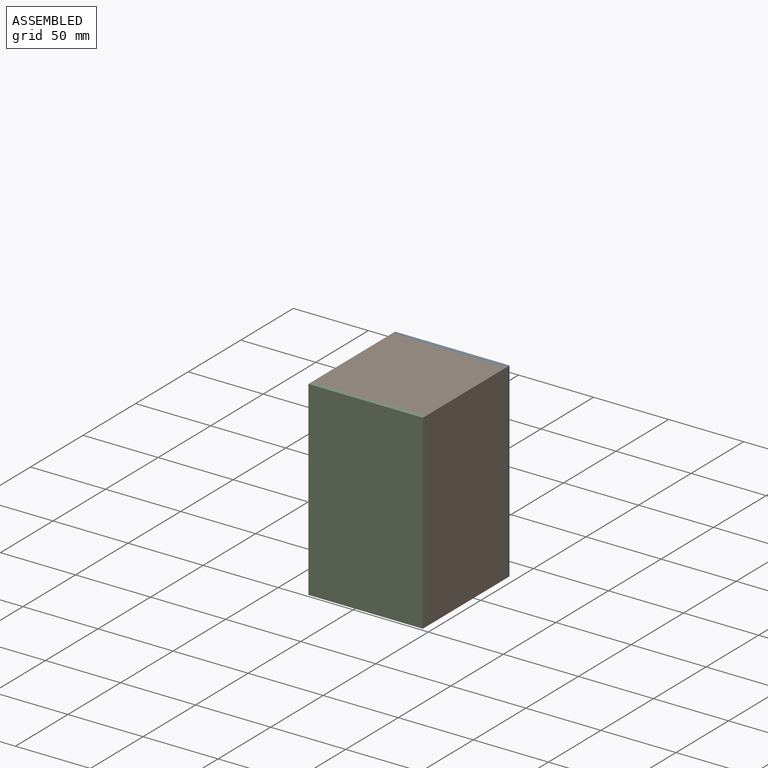
[diagram: assembled view]
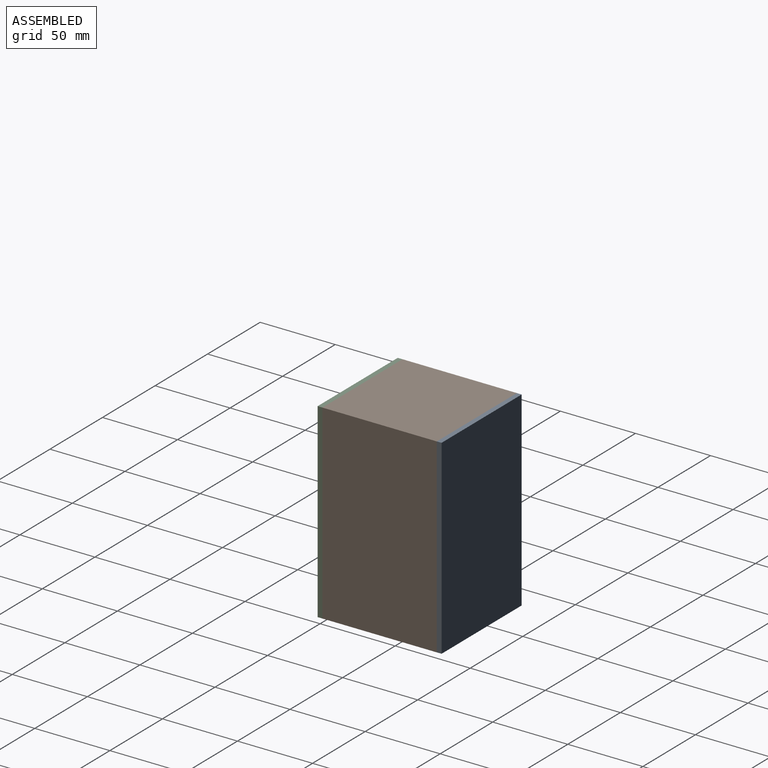
[diagram: assembled view, second angle]
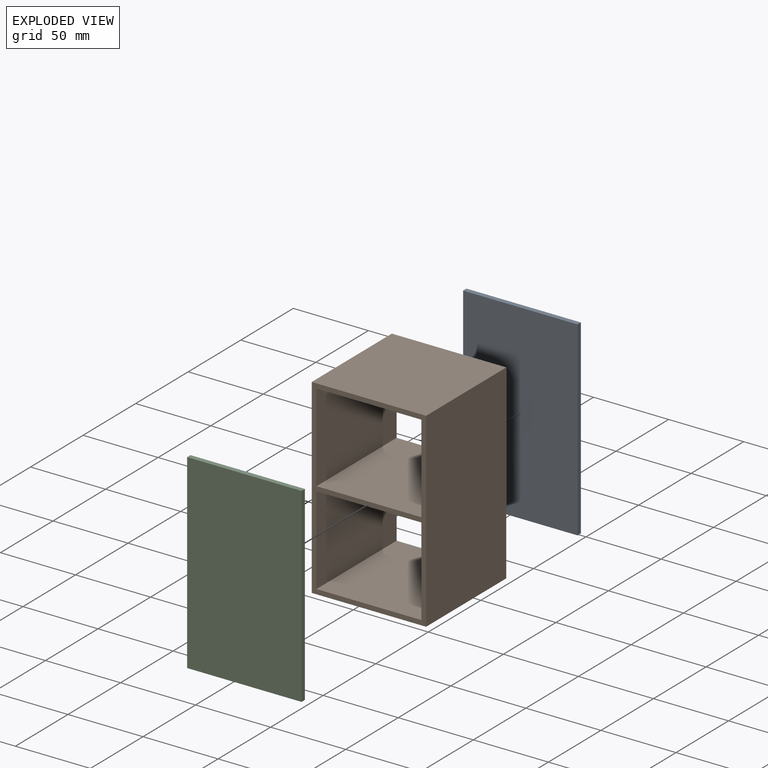
[diagram: exploded view]
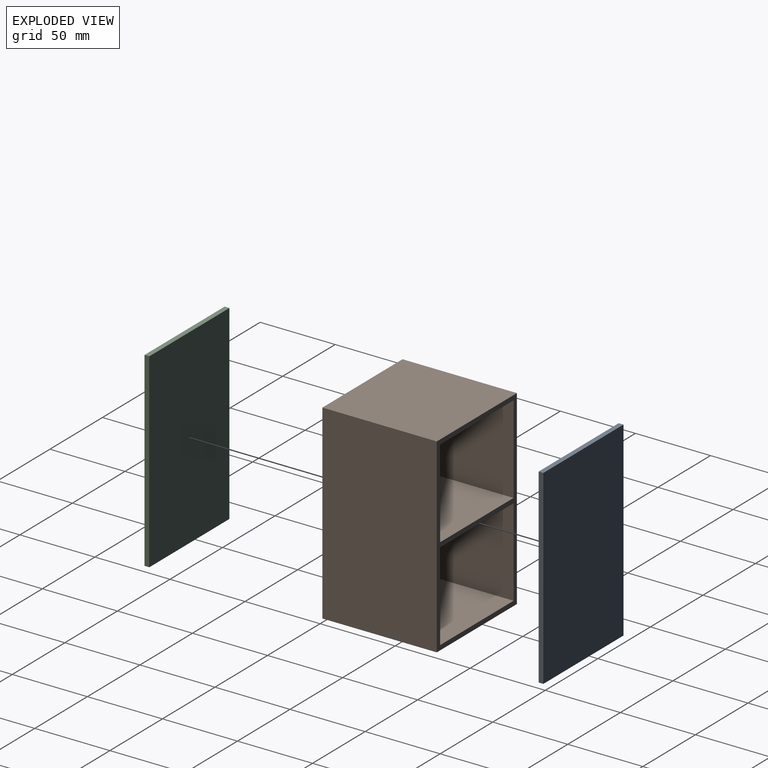
[diagram: exploded view, second angle]
ASSEMBLY  parts=3 mates=2
PART A: 6 faces, bbox 76.2x3.2x127 mm
  f0: plane 76.2x3.18mm, normal (0,0,1), area 241.9mm2, adj f1,f3,f4,f5
  f1: plane 127x3.18mm, normal (-1,0,0), area 403.2mm2, adj f0,f2,f4,f5
  f2: plane 76.2x3.18mm, normal (0,0,-1), area 241.9mm2, adj f1,f3,f4,f5
  f3: plane 127x3.18mm, normal (1,0,0), area 403.2mm2, adj f0,f2,f4,f5
  f4: plane 127x76.2mm, normal (0,-1,0), area 9677.4mm2, adj f0,f1,f2,f3
  f5: plane 127x76.2mm, normal (0,1,0), area 9677.4mm2, adj f0,f1,f2,f3
PART B: 14 faces, bbox 76.2x76.2x127 mm
  f0: plane 76.2x69.85mm, normal (0,0,-1), area 5322.6mm2, adj f1,f11,f12,f13
  f1: plane 76.2x58.74mm, normal (-1,0,0), area 4475.8mm2, adj f0,f2,f12,f13
  f2: plane 76.2x69.85mm, normal (0,0,1), area 5322.6mm2, adj f1,f11,f12,f13
  f3: plane 76.2x76.2mm, normal (0,0,1), area 5806.4mm2, adj f4,f9,f12,f13
  f4: plane 127x76.2mm, normal (-1,0,0), area 9677.4mm2, adj f3,f5,f12,f13
  f5: plane 76.2x76.2mm, normal (0,0,-1), area 5806.4mm2, adj f4,f9,f12,f13
  f6: plane 76.2x58.74mm, normal (-1,0,0), area 4475.8mm2, adj f7,f10,f12,f13
  f7: plane 76.2x69.85mm, normal (0,0,1), area 5322.6mm2, adj f6,f8,f12,f13
  f8: plane 76.2x58.74mm, normal (1,0,0), area 4475.8mm2, adj f7,f10,f12,f13
  f9: plane 127x76.2mm, normal (1,0,0), area 9677.4mm2, adj f3,f5,f12,f13
  f10: plane 76.2x69.85mm, normal (0,0,-1), area 5322.6mm2, adj f6,f8,f12,f13
  f11: plane 76.2x58.74mm, normal (1,0,0), area 4475.8mm2, adj f0,f2,f12,f13
  f12: plane 127x76.2mm, normal (0,-1,0), area 1471.8mm2, adj f0,f1,f2,f3,f4,f5,f6,f7
  f13: plane 127x76.2mm, normal (0,1,0), area 1471.8mm2, adj f0,f1,f2,f3,f4,f5,f6,f7
PART C: same geometry as A
PLACE A rot(axis=(0,0,1),180deg) t=(-39.81,26.57,5.96)mm
PLACE B rot(axis=(0,0,1),180deg) t=(-39.81,-49.63,5.96)mm
PLACE C rot(axis=(0,0,1),180deg) t=(-39.81,-52.8,5.96)mm
MATE fastened B.f13 <-> C.f4  axis (0,-1,0) through (-77.91,-49.63,69.46)mm
MATE revolute A.f0 <-> B.f3  axis (0,0,1) through (-1.71,26.57,69.46)mm
